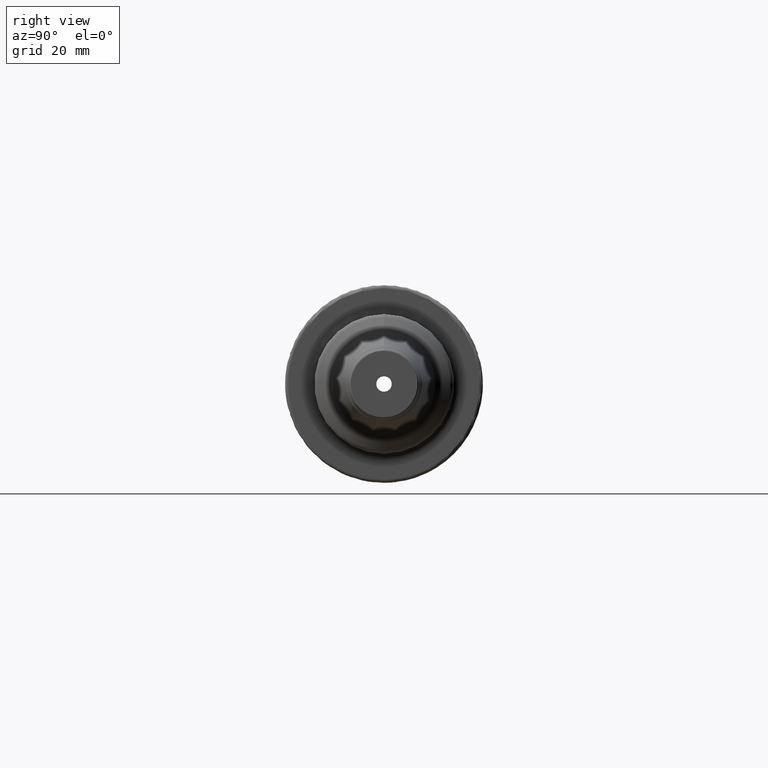
[diagram: clean part render]
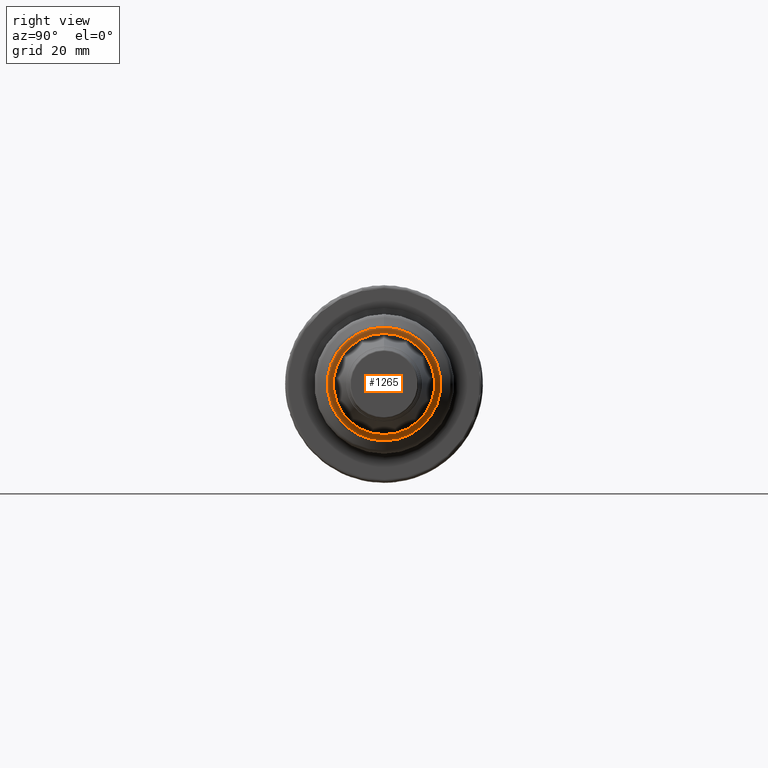
[diagram: same view with one face highlighted and labeled with its STEP entity id]
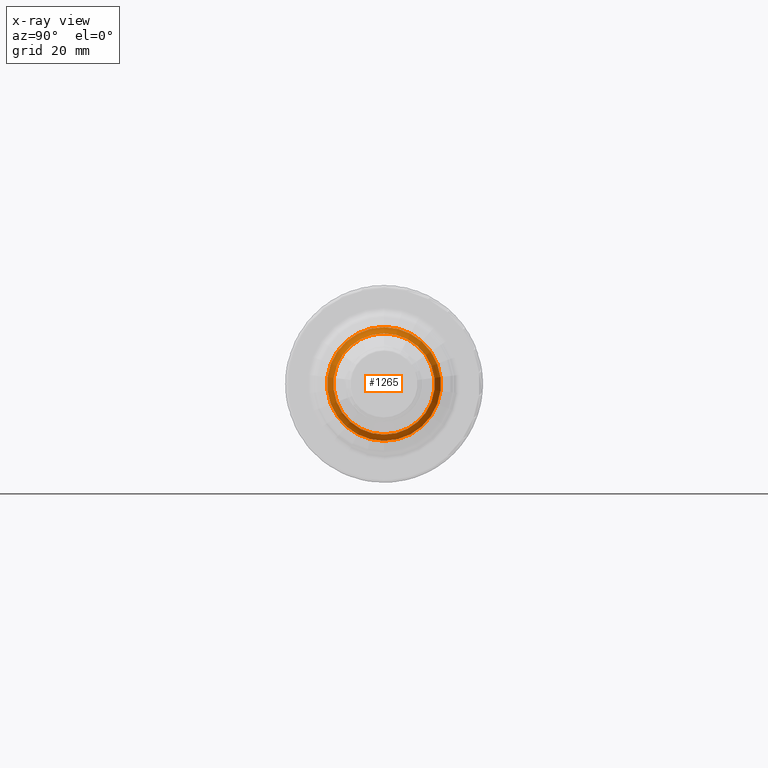
[diagram: x-ray of the same camera — body ghosted, the highlighted face saturated]
A machine part, right view. The second image highlights one B-rep face of the part: STEP entity #1265.
The next image is the same camera in x-ray: the body ghosted, the highlighted face saturated — about 0% of this face is hidden behind the body in this view.
In plain terms, the highlighted toroidal blend (fillet) surface has major radius 20.1216 mm and minor (blend) radius 4 mm.
Its self-contained STEP definition (entity closure, byte-faithful):
#261=FACE_OUTER_BOUND('',#344,.T.);
#344=EDGE_LOOP('',(#849,#850,#851,#852));
#433=CIRCLE('',#1372,18.1216316443699);
#434=CIRCLE('',#1373,4.);
#435=CIRCLE('',#1374,16.1271135053516);
#528=VERTEX_POINT('',#1974);
#529=VERTEX_POINT('',#1976);
#650=EDGE_CURVE('',#528,#528,#433,.T.);
#651=EDGE_CURVE('',#528,#529,#434,.T.);
#652=EDGE_CURVE('',#529,#529,#435,.T.);
#849=ORIENTED_EDGE('',*,*,#650,.T.);
#850=ORIENTED_EDGE('',*,*,#651,.T.);
#851=ORIENTED_EDGE('',*,*,#652,.T.);
#852=ORIENTED_EDGE('',*,*,#651,.F.);
#1247=TOROIDAL_SURFACE('',#1371,20.1216316443698,4.);
#1265=ADVANCED_FACE('',(#261),#1247,.F.);
#1371=AXIS2_PLACEMENT_3D('',#1973,#1549,#1550);
#1372=AXIS2_PLACEMENT_3D('',#1975,#1551,#1552);
#1373=AXIS2_PLACEMENT_3D('',#1977,#1553,#1554);
#1374=AXIS2_PLACEMENT_3D('',#1978,#1555,#1556);
#1549=DIRECTION('center_axis',(1.,0.,0.));
#1550=DIRECTION('ref_axis',(0.,0.,-1.));
#1551=DIRECTION('center_axis',(1.,0.,0.));
#1552=DIRECTION('ref_axis',(0.,0.,1.));
#1553=DIRECTION('center_axis',(0.,-1.,-1.22464679914735E-16));
#1554=DIRECTION('ref_axis',(0.,-1.22464679914735E-16,1.));
#1555=DIRECTION('center_axis',(-1.,0.,0.));
#1556=DIRECTION('ref_axis',(0.,0.,1.));
#1973=CARTESIAN_POINT('Origin',(52.3781902158609,0.,0.));
#1974=CARTESIAN_POINT('',(48.9140886007231,-2.21925981886049E-15,18.1216316443699));
#1975=CARTESIAN_POINT('Origin',(48.9140886007231,-2.21925981886049E-15,
0.));
#1976=CARTESIAN_POINT('',(52.1688463908891,-1.97500179338148E-15,16.1271135053516));
#1977=CARTESIAN_POINT('Origin',(52.3781902158609,-2.46418917868996E-15,
20.1216316443698));
#1978=CARTESIAN_POINT('Origin',(52.1688463908891,-1.97500179338148E-15,
0.));